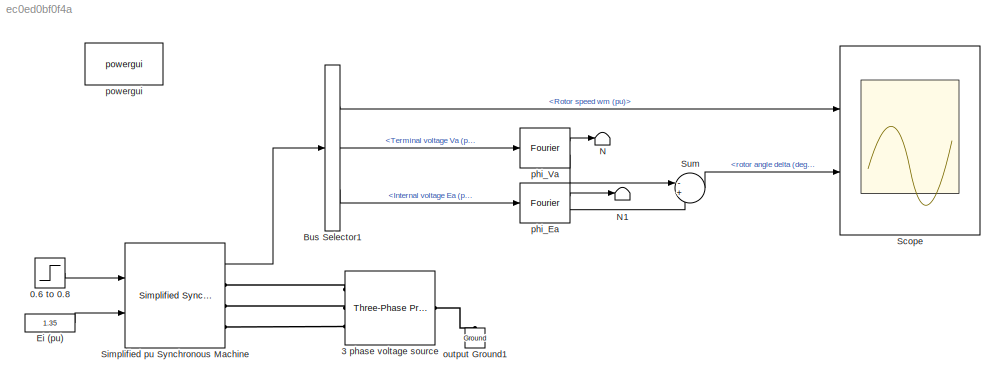
MODEL slx_ec0ed0bf0f4a
KIND model
CONFIG AbsTol = auto
CONFIG EnableMultiTasking = off
CONFIG FixedStep = auto
CONFIG MaxStep = auto
CONFIG MinStep = auto
CONFIG RelTol = 1e-4
CONFIG SampleTimeConstraint = Unconstrained
CONFIG SolverName = ode23tb
CONFIG StartTime = 0.0
CONFIG StopTime = 1260
BLOCK [Step] 0.6 to 0.8
  After = 0.8
  Before = 0.6
  SampleTime = 0
  Time = 2
BLOCK [Reference] 3 phase voltage source  REF=spsThreePhaseProgrammableVoltageSourceLib/Three-Phase
Programmable
Voltage Source
  AttributesFormatString = %<Mask>
  Ports = [0, 0, 0, 0, 0, 1, 3]
  SourceBlock = spsThreePhaseProgrammableVoltageSourceLib/Three-Phase\nProgrammable\nVoltage Source
  SourceProductBaseCode = PS
  SourceType = Three-Phase Programmable Voltage Source
BLOCK [BusSelector] Bus Selector1
  OutputSignals = Rotor speed wm (pu),Terminal voltage Va (pu),Internal voltage Ea (pu)
  Ports = [1, 3]
BLOCK [Constant] Ei (pu)
  Value = 1.35
BLOCK [Terminator] N
BLOCK [Terminator] N1
BLOCK [Scope] Scope
  Floating = off
  NumInputPorts = 2
  Ports = [2]
  ScopeSpecificationString = Simulink.scopes.TimeScopeBlockCfg('CurrentConfiguration', extmgr.ConfigurationSet(extmgr.Configuration('Core','General UI',true),extmgr.Configuration('Core','Source UI',true),extmgr.Configuration('Sources','WiredSimulink',true,'DataLoggingSaveFormat','StructureWithTime','DataLoggingDecimation','1','DataLoggingDecimateData',true,'DataLogging',true),extmgr.Configuration('Visuals','Time Domain',true,...<+2399ch>
BLOCK [Reference] Simplified pu Synchronous Machine  REF=spsSimplifiedSynchronousMachinepuUnitsLib/Simplified Synchronous
Machine pu Units
  AttributesFormatString = \n
  Ports = [2, 1, 0, 0, 0, 0, 3]
  SourceBlock = spsSimplifiedSynchronousMachinepuUnitsLib/Simplified Synchronous\nMachine pu Units
  SourceProductBaseCode = PS
  SourceType = Simplified Synchronous Machine
BLOCK [Sum] Sum
  InputSameDT = on
  Inputs = -+
  OutDataTypeStr = Inherit: Same as first input
  Ports = [2, 1]
  SaturateOnIntegerOverflow = on
BLOCK [Reference] output Ground1  REF=spsGroundLib/Ground
  AttributesFormatString = \n
  NameLocation = right
  Ports = [0, 0, 0, 0, 0, 1]
  SourceBlock = spsGroundLib/Ground
  SourceProductBaseCode = PS
  SourceType = Ground
BLOCK [Reference] phi_Ea  REF=spsFourierLib/Fourier
  Ports = [1, 2]
  SourceBlock = spsFourierLib/Fourier
  SourceProductBaseCode = PS
  SourceType = Fourier
BLOCK [Reference] phi_Va  REF=spsFourierLib/Fourier
  Ports = [1, 2]
  SourceBlock = spsFourierLib/Fourier
  SourceProductBaseCode = PS
  SourceType = Fourier
BLOCK [Reference] powergui  REF=spspowerguiLib/powergui
  Ports = []
  Priority = 2
  SourceBlock = spspowerguiLib/powergui
  SourceProductBaseCode = PS
  SourceType = PSB option menu block
LINE 0.6 to 0.8:1 -> Simplified pu Synchronous Machine:1
LINE Bus Selector1:1 -> Scope:1
LINE Bus Selector1:2 -> phi_Va:1
LINE Bus Selector1:3 -> phi_Ea:1
LINE Ei (pu):1 -> Simplified pu Synchronous Machine:2
LINE Simplified pu Synchronous Machine:1 -> Bus Selector1:1
LINE Sum:1 -> Scope:2
LINE phi_Ea:1 -> N1:1
LINE phi_Ea:2 -> Sum:2
LINE phi_Va:1 -> N:1
LINE phi_Va:2 -> Sum:1
PLINE 3 phase voltage source:LConn1 -- output Ground1:LConn1
PLINE 3 phase voltage source:RConn1 -- Simplified pu Synchronous Machine:RConn1
PLINE 3 phase voltage source:RConn2 -- Simplified pu Synchronous Machine:RConn2
PLINE 3 phase voltage source:RConn3 -- Simplified pu Synchronous Machine:RConn3
